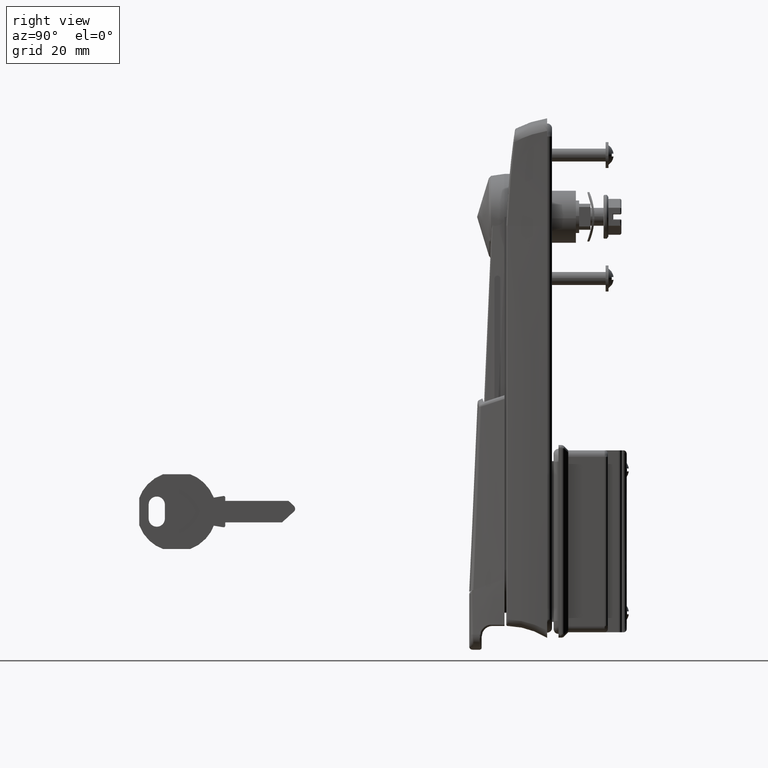
[diagram: clean part render]
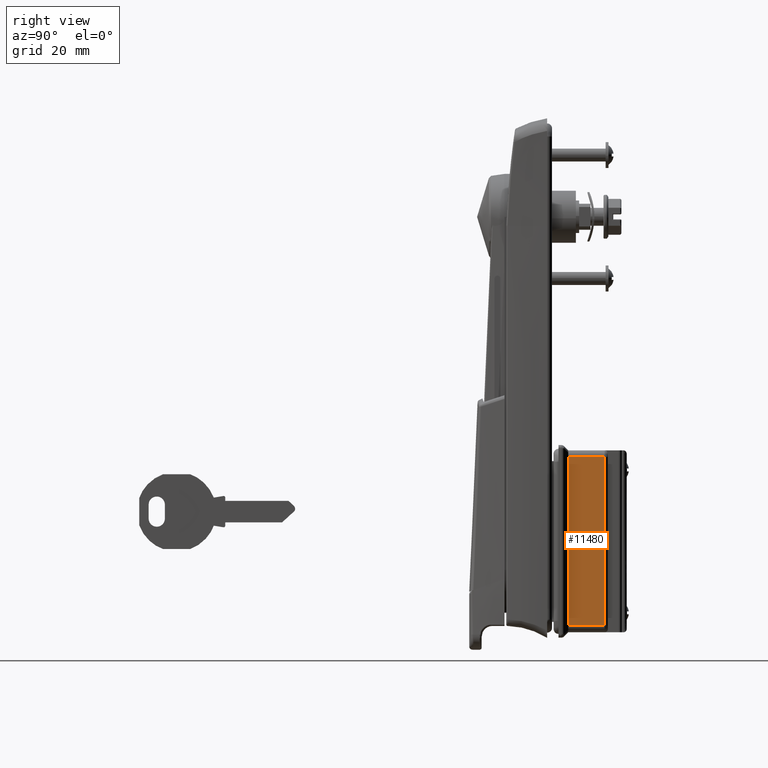
[diagram: same view with one face highlighted and labeled with its STEP entity id]
A machine part, right view. The second image highlights one B-rep face of the part: STEP entity #11480.
In plain terms, the highlighted face is a freeform B-spline surface patch.
Its self-contained STEP definition (entity closure, byte-faithful):
#10905=CARTESIAN_POINT('',(16.200000935966401,-14.000000526839941,-73.950003417441607));
#10906=VERTEX_POINT('',#10905);
#10962=CARTESIAN_POINT('',(16.200000935966401,-14.000000526839941,-125.950006077298990));
#10963=VERTEX_POINT('',#10962);
#10982=CARTESIAN_POINT('',(16.200000935966401,-14.000000526839941,-125.950006077298990));
#10983=CARTESIAN_POINT('',(16.200000935966401,-14.000000526839941,-73.950003417441607));
#10984=QUASI_UNIFORM_CURVE('',1,(#10982,#10983),.UNSPECIFIED.,.F.,.U.);
#10985=EDGE_CURVE('',#10963,#10906,#10984,.T.);
#11191=CARTESIAN_POINT('',(5.000000237486600,-14.000000622048100,-73.950003417441607));
#11192=VERTEX_POINT('',#11191);
#11193=CARTESIAN_POINT('',(16.200000935966401,-14.000000526839941,-73.950003417441607));
#11194=CARTESIAN_POINT('',(5.000000237486600,-14.000000622048100,-73.950003417441607));
#11195=QUASI_UNIFORM_CURVE('',1,(#11193,#11194),.UNSPECIFIED.,.F.,.U.);
#11196=EDGE_CURVE('',#10906,#11192,#11195,.T.);
#11244=CARTESIAN_POINT('',(5.000000237486600,-14.000000622048100,-125.950006077298990));
#11245=VERTEX_POINT('',#11244);
#11246=CARTESIAN_POINT('',(5.000000237486600,-14.000000622048100,-125.950006077298990));
#11247=CARTESIAN_POINT('',(16.200000935966401,-14.000000526839941,-125.950006077298990));
#11248=QUASI_UNIFORM_CURVE('',1,(#11246,#11247),.UNSPECIFIED.,.F.,.U.);
#11249=EDGE_CURVE('',#11245,#10963,#11248,.T.);
#11465=CARTESIAN_POINT('',(4.440560224305310,-14.000000626803750,-128.547406109372790));
#11466=CARTESIAN_POINT('',(16.759441249555120,-14.000000522084299,-128.547406109372790));
#11467=CARTESIAN_POINT('',(4.440560224305310,-14.000000626803750,-71.352601990619050));
#11468=CARTESIAN_POINT('',(16.759441249555120,-14.000000522084299,-71.352601990619050));
#11469=B_SPLINE_SURFACE_WITH_KNOTS('',1,1,((#11465,#11467),(#11466,#11468)),.UNSPECIFIED.,.F.,.F.,.U.,(2,2),(2,2),(0.0,12.318881025249810),(0.0,57.194804118753737),.UNSPECIFIED.);
#11470=ORIENTED_EDGE('',*,*,#11249,.T.);
#11471=ORIENTED_EDGE('',*,*,#10985,.T.);
#11472=ORIENTED_EDGE('',*,*,#11196,.T.);
#11473=CARTESIAN_POINT('',(5.000000237486600,-14.000000622048100,-73.950003417441607));
#11474=CARTESIAN_POINT('',(5.000000237486600,-14.000000622048100,-125.950006077298990));
#11475=QUASI_UNIFORM_CURVE('',1,(#11473,#11474),.UNSPECIFIED.,.F.,.U.);
#11476=EDGE_CURVE('',#11192,#11245,#11475,.T.);
#11477=ORIENTED_EDGE('',*,*,#11476,.T.);
#11478=EDGE_LOOP('',(#11470,#11471,#11472,#11477));
#11479=FACE_OUTER_BOUND('',#11478,.T.);
#11480=ADVANCED_FACE('',(#11479),#11469,.T.);